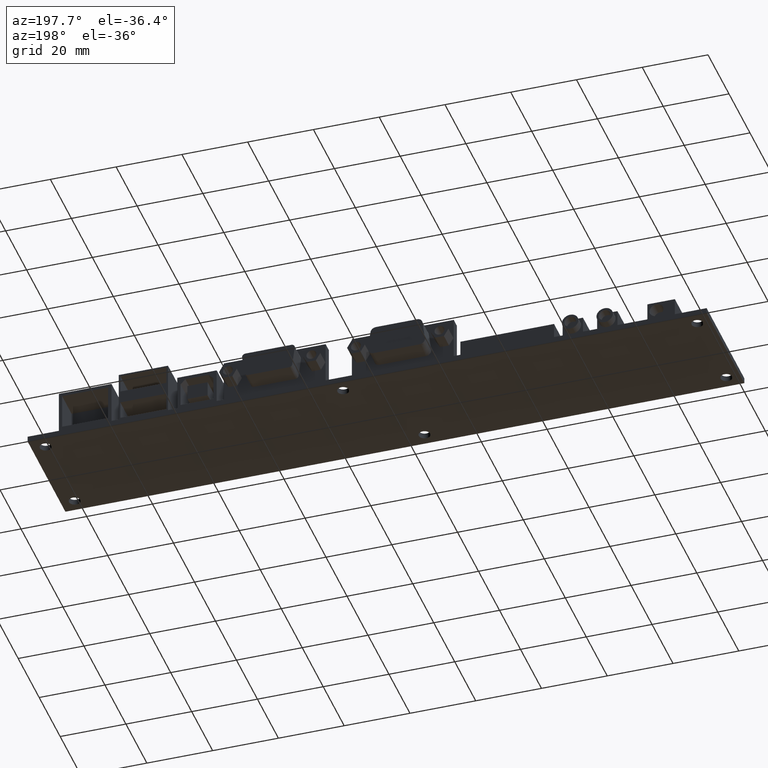
[diagram: clean part render]
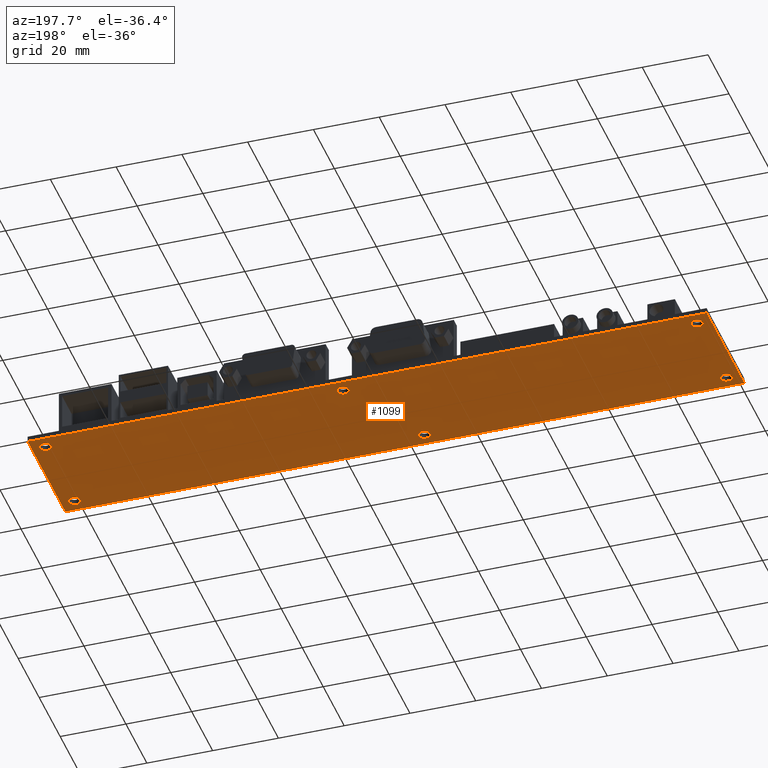
[diagram: same view with one face highlighted and labeled with its STEP entity id]
A machine part, auxiliary view. The second image highlights one B-rep face of the part: STEP entity #1099.
In plain terms, the highlighted planar face has unit normal (0, 0, -1).
Its self-contained STEP definition (entity closure, byte-faithful):
#361=FACE_BOUND($,#2861,.T.);
#362=FACE_BOUND($,#2862,.T.);
#363=FACE_BOUND($,#2863,.T.);
#364=FACE_BOUND($,#2864,.T.);
#365=FACE_BOUND($,#2865,.T.);
#366=FACE_BOUND($,#2866,.T.);
#1099=ADVANCED_FACE($,(#1979,#361,#362,#363,#364,#365,#366),#10765,.T.);
#1979=FACE_OUTER_BOUND($,#2860,.T.);
#2860=EDGE_LOOP($,(#6132,#6133,#6134,#6135));
#2861=EDGE_LOOP($,(#6136,#6137));
#2862=EDGE_LOOP($,(#6138,#6139));
#2863=EDGE_LOOP($,(#6140,#6141));
#2864=EDGE_LOOP($,(#6142,#6143));
#2865=EDGE_LOOP($,(#6144,#6145));
#2866=EDGE_LOOP($,(#6146,#6147));
#6132=ORIENTED_EDGE($,*,*,#8447,.T.);
#6133=ORIENTED_EDGE($,*,*,#8448,.T.);
#6134=ORIENTED_EDGE($,*,*,#8449,.T.);
#6135=ORIENTED_EDGE($,*,*,#8450,.T.);
#6136=ORIENTED_EDGE($,*,*,#8459,.T.);
#6137=ORIENTED_EDGE($,*,*,#8478,.T.);
#6138=ORIENTED_EDGE($,*,*,#8481,.F.);
#6139=ORIENTED_EDGE($,*,*,#8462,.F.);
#6140=ORIENTED_EDGE($,*,*,#8484,.F.);
#6141=ORIENTED_EDGE($,*,*,#8465,.F.);
#6142=ORIENTED_EDGE($,*,*,#8468,.T.);
#6143=ORIENTED_EDGE($,*,*,#8487,.T.);
#6144=ORIENTED_EDGE($,*,*,#8471,.T.);
#6145=ORIENTED_EDGE($,*,*,#8490,.T.);
#6146=ORIENTED_EDGE($,*,*,#8493,.F.);
#6147=ORIENTED_EDGE($,*,*,#8474,.F.);
#8447=EDGE_CURVE($,#9868,#9869,#12483,.T.);
#8448=EDGE_CURVE($,#9869,#9870,#12484,.T.);
#8449=EDGE_CURVE($,#9870,#9871,#12485,.T.);
#8450=EDGE_CURVE($,#9871,#9868,#12486,.T.);
#8459=EDGE_CURVE($,#9876,#9889,#10900,.T.);
#8462=EDGE_CURVE($,#9878,#9891,#10902,.T.);
#8465=EDGE_CURVE($,#9880,#9893,#10904,.T.);
#8468=EDGE_CURVE($,#9882,#9895,#10906,.T.);
#8471=EDGE_CURVE($,#9884,#9897,#10908,.T.);
#8474=EDGE_CURVE($,#9886,#9899,#10910,.T.);
#8478=EDGE_CURVE($,#9889,#9876,#10912,.T.);
#8481=EDGE_CURVE($,#9891,#9878,#10914,.T.);
#8484=EDGE_CURVE($,#9893,#9880,#10916,.T.);
#8487=EDGE_CURVE($,#9895,#9882,#10918,.T.);
#8490=EDGE_CURVE($,#9897,#9884,#10920,.T.);
#8493=EDGE_CURVE($,#9899,#9886,#10922,.T.);
#9868=VERTEX_POINT($,#20778);
#9869=VERTEX_POINT($,#20779);
#9870=VERTEX_POINT($,#20780);
#9871=VERTEX_POINT($,#20781);
#9876=VERTEX_POINT($,#20786);
#9878=VERTEX_POINT($,#20788);
#9880=VERTEX_POINT($,#20790);
#9882=VERTEX_POINT($,#20792);
#9884=VERTEX_POINT($,#20794);
#9886=VERTEX_POINT($,#20796);
#9889=VERTEX_POINT($,#20799);
#9891=VERTEX_POINT($,#20801);
#9893=VERTEX_POINT($,#20803);
#9895=VERTEX_POINT($,#20805);
#9897=VERTEX_POINT($,#20807);
#9899=VERTEX_POINT($,#20809);
#10765=PLANE($,#13509);
#10900=(
BOUNDED_CURVE()
B_SPLINE_CURVE(2,(#20508,#20509,#20510,#20511,#20512),.UNSPECIFIED.,.F.,
.F.)
B_SPLINE_CURVE_WITH_KNOTS((3,2,3),(-10.9931825011262,-8.24488687584468,-5.49659125056312),
.UNSPECIFIED.)
CURVE()
GEOMETRIC_REPRESENTATION_ITEM()
RATIONAL_B_SPLINE_CURVE((1.,0.707106781186548,1.,0.707106781186547,1.))
REPRESENTATION_ITEM($)
);
#10902=(
BOUNDED_CURVE()
B_SPLINE_CURVE(2,(#20520,#20521,#20522,#20523,#20524),.UNSPECIFIED.,.F.,
.F.)
B_SPLINE_CURVE_WITH_KNOTS((3,2,3),(-10.9931825011263,-8.2448868758447,-5.49659125056313),
.UNSPECIFIED.)
CURVE()
GEOMETRIC_REPRESENTATION_ITEM()
RATIONAL_B_SPLINE_CURVE((1.,0.707106781186548,1.,0.707106781186547,1.))
REPRESENTATION_ITEM($)
);
#10904=(
BOUNDED_CURVE()
B_SPLINE_CURVE(2,(#20532,#20533,#20534,#20535,#20536),.UNSPECIFIED.,.F.,
.F.)
B_SPLINE_CURVE_WITH_KNOTS((3,2,3),(-10.9931825011263,-8.24488687584475,-5.49659125056316),
.UNSPECIFIED.)
CURVE()
GEOMETRIC_REPRESENTATION_ITEM()
RATIONAL_B_SPLINE_CURVE((1.,0.707106781186548,1.,0.707106781186547,1.))
REPRESENTATION_ITEM($)
);
#10906=(
BOUNDED_CURVE()
B_SPLINE_CURVE(2,(#20544,#20545,#20546,#20547,#20548),.UNSPECIFIED.,.F.,
.F.)
B_SPLINE_CURVE_WITH_KNOTS((3,2,3),(-10.9931825011263,-8.24488687584474,-5.49659125056316),
.UNSPECIFIED.)
CURVE()
GEOMETRIC_REPRESENTATION_ITEM()
RATIONAL_B_SPLINE_CURVE((1.,0.707106781186548,1.,0.707106781186547,1.))
REPRESENTATION_ITEM($)
);
#10908=(
BOUNDED_CURVE()
B_SPLINE_CURVE(2,(#20556,#20557,#20558,#20559,#20560),.UNSPECIFIED.,.F.,
.F.)
B_SPLINE_CURVE_WITH_KNOTS((3,2,3),(-10.9931825011262,-8.24488687584468,-5.49659125056312),
.UNSPECIFIED.)
CURVE()
GEOMETRIC_REPRESENTATION_ITEM()
RATIONAL_B_SPLINE_CURVE((1.,0.707106781186548,1.,0.707106781186547,1.))
REPRESENTATION_ITEM($)
);
#10910=(
BOUNDED_CURVE()
B_SPLINE_CURVE(2,(#20568,#20569,#20570,#20571,#20572),.UNSPECIFIED.,.F.,
.F.)
B_SPLINE_CURVE_WITH_KNOTS((3,2,3),(-10.9931825011262,-8.24488687584468,-5.49659125056312),
.UNSPECIFIED.)
CURVE()
GEOMETRIC_REPRESENTATION_ITEM()
RATIONAL_B_SPLINE_CURVE((1.,0.707106781186548,1.,0.707106781186547,1.))
REPRESENTATION_ITEM($)
);
#10912=(
BOUNDED_CURVE()
B_SPLINE_CURVE(2,(#20582,#20583,#20584,#20585,#20586),.UNSPECIFIED.,.F.,
.F.)
B_SPLINE_CURVE_WITH_KNOTS((3,2,3),(-5.49659125056312,-2.74829562528156,0.),
.UNSPECIFIED.)
CURVE()
GEOMETRIC_REPRESENTATION_ITEM()
RATIONAL_B_SPLINE_CURVE((1.,0.707106781186548,1.,0.707106781186548,1.))
REPRESENTATION_ITEM($)
);
#10914=(
BOUNDED_CURVE()
B_SPLINE_CURVE(2,(#20594,#20595,#20596,#20597,#20598),.UNSPECIFIED.,.F.,
.F.)
B_SPLINE_CURVE_WITH_KNOTS((3,2,3),(-5.49659125056313,-2.74829562528157,0.),
.UNSPECIFIED.)
CURVE()
GEOMETRIC_REPRESENTATION_ITEM()
RATIONAL_B_SPLINE_CURVE((1.,0.707106781186548,1.,0.707106781186548,1.))
REPRESENTATION_ITEM($)
);
#10916=(
BOUNDED_CURVE()
B_SPLINE_CURVE(2,(#20606,#20607,#20608,#20609,#20610),.UNSPECIFIED.,.F.,
.F.)
B_SPLINE_CURVE_WITH_KNOTS((3,2,3),(-5.49659125056316,-2.74829562528158,0.),
.UNSPECIFIED.)
CURVE()
GEOMETRIC_REPRESENTATION_ITEM()
RATIONAL_B_SPLINE_CURVE((1.,0.707106781186548,1.,0.707106781186548,1.))
REPRESENTATION_ITEM($)
);
#10918=(
BOUNDED_CURVE()
B_SPLINE_CURVE(2,(#20618,#20619,#20620,#20621,#20622),.UNSPECIFIED.,.F.,
.F.)
B_SPLINE_CURVE_WITH_KNOTS((3,2,3),(-5.49659125056316,-2.74829562528158,0.),
.UNSPECIFIED.)
CURVE()
GEOMETRIC_REPRESENTATION_ITEM()
RATIONAL_B_SPLINE_CURVE((1.,0.707106781186548,1.,0.707106781186548,1.))
REPRESENTATION_ITEM($)
);
#10920=(
BOUNDED_CURVE()
B_SPLINE_CURVE(2,(#20630,#20631,#20632,#20633,#20634),.UNSPECIFIED.,.F.,
.F.)
B_SPLINE_CURVE_WITH_KNOTS((3,2,3),(-5.49659125056312,-2.74829562528156,0.),
.UNSPECIFIED.)
CURVE()
GEOMETRIC_REPRESENTATION_ITEM()
RATIONAL_B_SPLINE_CURVE((1.,0.707106781186548,1.,0.707106781186548,1.))
REPRESENTATION_ITEM($)
);
#10922=(
BOUNDED_CURVE()
B_SPLINE_CURVE(2,(#20642,#20643,#20644,#20645,#20646),.UNSPECIFIED.,.F.,
.F.)
B_SPLINE_CURVE_WITH_KNOTS((3,2,3),(-5.49659125056312,-2.74829562528156,0.),
.UNSPECIFIED.)
CURVE()
GEOMETRIC_REPRESENTATION_ITEM()
RATIONAL_B_SPLINE_CURVE((1.,0.707106781186548,1.,0.707106781186548,1.))
REPRESENTATION_ITEM($)
);
#12483=B_SPLINE_CURVE_WITH_KNOTS($,1,(#20484,#20485),.UNSPECIFIED.,.F.,.F.,
(2,2),(0.,36.),.UNSPECIFIED.);
#12484=B_SPLINE_CURVE_WITH_KNOTS($,1,(#20486,#20487),.UNSPECIFIED.,.F.,.F.,
(2,2),(0.,206.5),.UNSPECIFIED.);
#12485=B_SPLINE_CURVE_WITH_KNOTS($,1,(#20488,#20489),.UNSPECIFIED.,.F.,.F.,
(2,2),(0.,36.),.UNSPECIFIED.);
#12486=B_SPLINE_CURVE_WITH_KNOTS($,1,(#20490,#20491),.UNSPECIFIED.,.F.,.F.,
(2,2),(0.,206.5),.UNSPECIFIED.);
#13509=AXIS2_PLACEMENT_3D($,#20656,#14237,$);
#14237=DIRECTION($,(0.,0.,-1.));
#20484=CARTESIAN_POINT($,(0.,0.,0.));
#20485=CARTESIAN_POINT($,(0.,36.,0.));
#20486=CARTESIAN_POINT($,(0.,36.,0.));
#20487=CARTESIAN_POINT($,(206.5,36.,0.));
#20488=CARTESIAN_POINT($,(206.5,36.,0.));
#20489=CARTESIAN_POINT($,(206.5,0.,0.));
#20490=CARTESIAN_POINT($,(206.5,0.,0.));
#20491=CARTESIAN_POINT($,(0.,0.,0.));
#20508=CARTESIAN_POINT($,(113.6,31.85,-5.55111512312578E-17));
#20509=CARTESIAN_POINT($,(113.6,33.6,1.8132058984489E-17));
#20510=CARTESIAN_POINT($,(111.85,33.6,0.));
#20511=CARTESIAN_POINT($,(110.1,33.6,1.8132058984489E-17));
#20512=CARTESIAN_POINT($,(110.1,31.85,8.28702962230678E-33));
#20520=CARTESIAN_POINT($,(97.7,4.15,-5.55111512312578E-17));
#20521=CARTESIAN_POINT($,(97.7,2.4,1.8132058984489E-17));
#20522=CARTESIAN_POINT($,(95.95,2.4,0.));
#20523=CARTESIAN_POINT($,(94.2,2.4,1.8132058984489E-17));
#20524=CARTESIAN_POINT($,(94.2,4.15,8.28702962230676E-33));
#20532=CARTESIAN_POINT($,(200.6,31.85,-5.55111512312578E-17));
#20533=CARTESIAN_POINT($,(200.6,33.6,1.8132058984489E-17));
#20534=CARTESIAN_POINT($,(202.35,33.6,0.));
#20535=CARTESIAN_POINT($,(204.1,33.6,1.8132058984489E-17));
#20536=CARTESIAN_POINT($,(204.1,31.85,8.28702962230672E-33));
#20544=CARTESIAN_POINT($,(200.6,4.15,-5.55111512312578E-17));
#20545=CARTESIAN_POINT($,(200.6,2.4,1.8132058984489E-17));
#20546=CARTESIAN_POINT($,(202.35,2.4,0.));
#20547=CARTESIAN_POINT($,(204.1,2.4,1.8132058984489E-17));
#20548=CARTESIAN_POINT($,(204.1,4.15,8.28702962230672E-33));
#20556=CARTESIAN_POINT($,(5.9,31.85,-5.55111512312578E-17));
#20557=CARTESIAN_POINT($,(5.9,33.6,1.8132058984489E-17));
#20558=CARTESIAN_POINT($,(4.15,33.6,0.));
#20559=CARTESIAN_POINT($,(2.4,33.6,1.8132058984489E-17));
#20560=CARTESIAN_POINT($,(2.4,31.85,8.28702962230678E-33));
#20568=CARTESIAN_POINT($,(5.9,4.15,-5.55111512312578E-17));
#20569=CARTESIAN_POINT($,(5.9,2.4,1.8132058984489E-17));
#20570=CARTESIAN_POINT($,(4.15,2.4,0.));
#20571=CARTESIAN_POINT($,(2.4,2.4,1.8132058984489E-17));
#20572=CARTESIAN_POINT($,(2.4,4.15,8.28702962230678E-33));
#20582=CARTESIAN_POINT($,(110.1,31.85,8.28702962230678E-33));
#20583=CARTESIAN_POINT($,(110.1,30.1,1.8132058984489E-17));
#20584=CARTESIAN_POINT($,(111.85,30.1,0.));
#20585=CARTESIAN_POINT($,(113.6,30.1,1.8132058984489E-17));
#20586=CARTESIAN_POINT($,(113.6,31.85,-5.55111512312578E-17));
#20594=CARTESIAN_POINT($,(94.2,4.15,8.28702962230676E-33));
#20595=CARTESIAN_POINT($,(94.2,5.9,1.8132058984489E-17));
#20596=CARTESIAN_POINT($,(95.95,5.9,0.));
#20597=CARTESIAN_POINT($,(97.7,5.9,1.8132058984489E-17));
#20598=CARTESIAN_POINT($,(97.7,4.15,-5.55111512312578E-17));
#20606=CARTESIAN_POINT($,(204.1,31.85,8.28702962230672E-33));
#20607=CARTESIAN_POINT($,(204.1,30.1,1.8132058984489E-17));
#20608=CARTESIAN_POINT($,(202.35,30.1,0.));
#20609=CARTESIAN_POINT($,(200.6,30.1,1.8132058984489E-17));
#20610=CARTESIAN_POINT($,(200.6,31.85,-5.55111512312578E-17));
#20618=CARTESIAN_POINT($,(204.1,4.15,8.28702962230672E-33));
#20619=CARTESIAN_POINT($,(204.1,5.9,1.8132058984489E-17));
#20620=CARTESIAN_POINT($,(202.35,5.9,0.));
#20621=CARTESIAN_POINT($,(200.6,5.9,1.8132058984489E-17));
#20622=CARTESIAN_POINT($,(200.6,4.15,-5.55111512312578E-17));
#20630=CARTESIAN_POINT($,(2.4,31.85,8.28702962230678E-33));
#20631=CARTESIAN_POINT($,(2.4,30.1,1.8132058984489E-17));
#20632=CARTESIAN_POINT($,(4.15,30.1,0.));
#20633=CARTESIAN_POINT($,(5.9,30.1,1.8132058984489E-17));
#20634=CARTESIAN_POINT($,(5.9,31.85,-5.55111512312578E-17));
#20642=CARTESIAN_POINT($,(2.4,4.15,8.28702962230678E-33));
#20643=CARTESIAN_POINT($,(2.4,5.9,1.8132058984489E-17));
#20644=CARTESIAN_POINT($,(4.15,5.9,0.));
#20645=CARTESIAN_POINT($,(5.9,5.9,1.8132058984489E-17));
#20646=CARTESIAN_POINT($,(5.9,4.15,-5.55111512312578E-17));
#20656=CARTESIAN_POINT($,(0.,0.,0.));
#20778=CARTESIAN_POINT($,(0.,0.,0.));
#20779=CARTESIAN_POINT($,(0.,36.,0.));
#20780=CARTESIAN_POINT($,(206.5,36.,0.));
#20781=CARTESIAN_POINT($,(206.5,0.,0.));
#20786=CARTESIAN_POINT($,(113.6,31.85,-5.55111512312578E-17));
#20788=CARTESIAN_POINT($,(97.7,4.15,-5.55111512312578E-17));
#20790=CARTESIAN_POINT($,(200.6,31.85,-5.55111512312578E-17));
#20792=CARTESIAN_POINT($,(200.6,4.15,-5.55111512312578E-17));
#20794=CARTESIAN_POINT($,(5.9,31.85,-5.55111512312578E-17));
#20796=CARTESIAN_POINT($,(5.9,4.15,-5.55111512312578E-17));
#20799=CARTESIAN_POINT($,(110.1,31.85,0.));
#20801=CARTESIAN_POINT($,(94.2,4.15,0.));
#20803=CARTESIAN_POINT($,(204.1,31.85,0.));
#20805=CARTESIAN_POINT($,(204.1,4.15,0.));
#20807=CARTESIAN_POINT($,(2.4,31.85,0.));
#20809=CARTESIAN_POINT($,(2.4,4.15,0.));